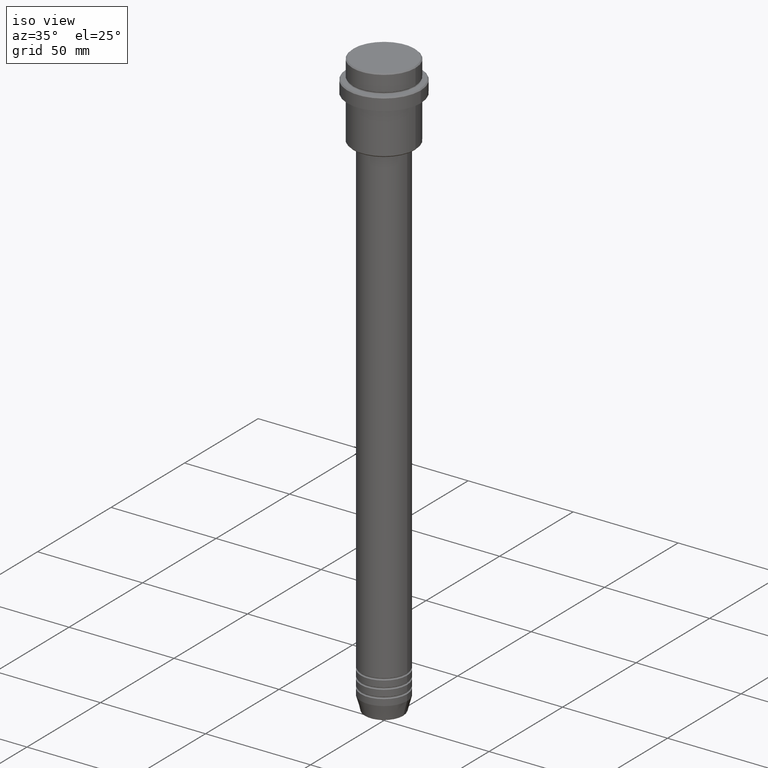
[diagram: clean part render]
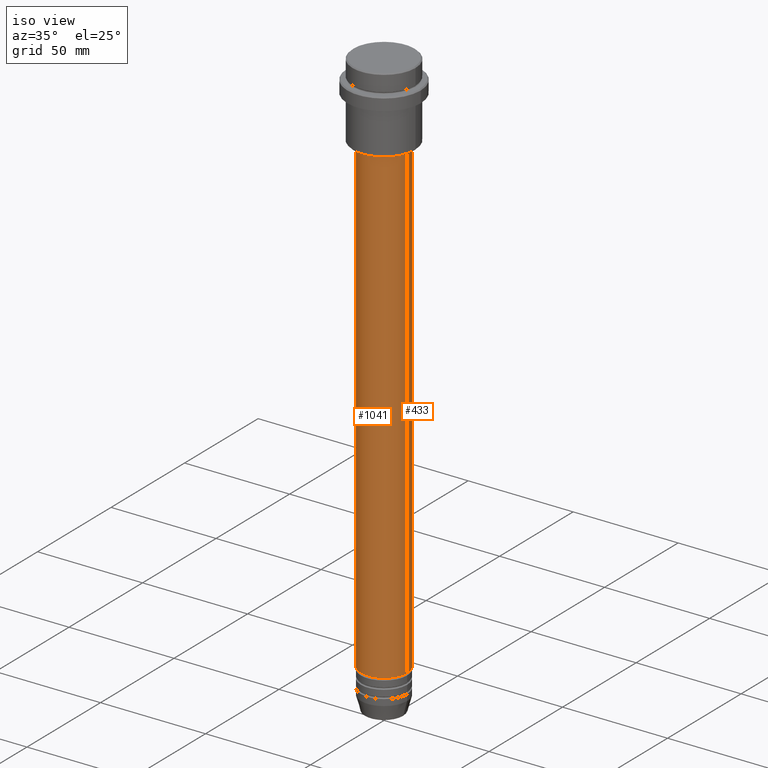
[diagram: same view with one multi-face feature highlighted, each face labeled with its STEP entity id]
A machine part, iso view. The highlighted faces form ONE feature: a constant-radius fillet chain: 2 tangent blend faces with common blend radius 11 mm. The faces share edges in the B-rep.
Their STEP definitions:
[1] entity #1041 (Cylinder):
#2 = EDGE_CURVE ( 'NONE', #743, #348, #1378, .T. ) ;
#5 = DIRECTION ( 'NONE',  ( 1.000000000000000000, 0.000000000000000000, 0.000000000000000000 ) ) ;
#27 = EDGE_LOOP ( 'NONE', ( #1201, #857, #887, #1208 ) ) ;
#97 = VECTOR ( 'NONE', #435, 1000.000000000000000 ) ;
#115 = EDGE_CURVE ( 'NONE', #348, #996, #357, .T. ) ;
#174 = DIRECTION ( 'NONE',  ( -0.000000000000000000, -0.000000000000000000, 1.000000000000000000 ) ) ;
#188 = LINE ( 'NONE', #1080, #1142 ) ;
#218 = CARTESIAN_POINT ( 'NONE',  ( 0.000000000000000000, 0.000000000000000000, -261.9999999999998863 ) ) ;
#271 = CARTESIAN_POINT ( 'NONE',  ( 0.000000000000000000, 0.000000000000000000, 0.000000000000000000 ) ) ;
#348 = VERTEX_POINT ( 'NONE', #1399 ) ;
#357 = LINE ( 'NONE', #1238, #97 ) ;
#407 = AXIS2_PLACEMENT_3D ( 'NONE', #271, #174, #1035 ) ;
#435 = DIRECTION ( 'NONE',  ( -0.000000000000000000, -0.000000000000000000, 1.000000000000000000 ) ) ;
#442 = EDGE_CURVE ( 'NONE', #1177, #996, #745, .T. ) ;
#567 = DIRECTION ( 'NONE',  ( -0.000000000000000000, -0.000000000000000000, 1.000000000000000000 ) ) ;
#620 = DIRECTION ( 'NONE',  ( -0.000000000000000000, -0.000000000000000000, 1.000000000000000000 ) ) ;
#712 = FACE_OUTER_BOUND ( 'NONE', #27, .T. ) ;
#743 = VERTEX_POINT ( 'NONE', #1392 ) ;
#745 = CIRCLE ( 'NONE', #772, 10.99999999999999822 ) ;
#772 = AXIS2_PLACEMENT_3D ( 'NONE', #877, #1197, #5 ) ;
#792 = EDGE_CURVE ( 'NONE', #743, #1177, #188, .T. ) ;
#857 = ORIENTED_EDGE ( 'NONE', *, *, #2, .T. ) ;
#877 = CARTESIAN_POINT ( 'NONE',  ( 0.000000000000000000, 0.000000000000000000, -37.00000000000008527 ) ) ;
#879 = CARTESIAN_POINT ( 'NONE',  ( -10.99999999999999822, 1.347111479062088207E-15, -37.00000000000008527 ) ) ;
#887 = ORIENTED_EDGE ( 'NONE', *, *, #115, .T. ) ;
#996 = VERTEX_POINT ( 'NONE', #1158 ) ;
#1000 = DIRECTION ( 'NONE',  ( 1.000000000000000000, 0.000000000000000000, 0.000000000000000000 ) ) ;
#1035 = DIRECTION ( 'NONE',  ( 1.000000000000000000, 0.000000000000000000, 0.000000000000000000 ) ) ;
#1041 = ADVANCED_FACE ( 'NONE', ( #712 ), #1163, .T. ) ;
#1080 = CARTESIAN_POINT ( 'NONE',  ( -11.00000000000000000, 1.347111479062088405E-15, 0.000000000000000000 ) ) ;
#1142 = VECTOR ( 'NONE', #620, 1000.000000000000000 ) ;
#1158 = CARTESIAN_POINT ( 'NONE',  ( 10.99999999999999822, 0.000000000000000000, -37.00000000000008527 ) ) ;
#1163 = CYLINDRICAL_SURFACE ( 'NONE', #407, 11.00000000000000000 ) ;
#1177 = VERTEX_POINT ( 'NONE', #879 ) ;
#1197 = DIRECTION ( 'NONE',  ( -0.000000000000000000, -0.000000000000000000, 1.000000000000000000 ) ) ;
#1201 = ORIENTED_EDGE ( 'NONE', *, *, #792, .F. ) ;
#1208 = ORIENTED_EDGE ( 'NONE', *, *, #442, .F. ) ;
#1238 = CARTESIAN_POINT ( 'NONE',  ( 11.00000000000000000, 0.000000000000000000, 0.000000000000000000 ) ) ;
#1338 = AXIS2_PLACEMENT_3D ( 'NONE', #218, #567, #1000 ) ;
#1378 = CIRCLE ( 'NONE', #1338, 11.00000000000000000 ) ;
#1392 = CARTESIAN_POINT ( 'NONE',  ( -11.00000000000000000, 1.347111479062088405E-15, -261.9999999999998863 ) ) ;
#1399 = CARTESIAN_POINT ( 'NONE',  ( 11.00000000000000000, 0.000000000000000000, -261.9999999999998863 ) ) ;
[2] entity #433 (Cylinder):
#97 = VECTOR ( 'NONE', #435, 1000.000000000000000 ) ;
#105 = DIRECTION ( 'NONE',  ( 1.000000000000000000, 0.000000000000000000, 0.000000000000000000 ) ) ;
#115 = EDGE_CURVE ( 'NONE', #348, #996, #357, .T. ) ;
#116 = DIRECTION ( 'NONE',  ( -0.000000000000000000, -0.000000000000000000, 1.000000000000000000 ) ) ;
#188 = LINE ( 'NONE', #1080, #1142 ) ;
#191 = AXIS2_PLACEMENT_3D ( 'NONE', #779, #338, #105 ) ;
#216 = CARTESIAN_POINT ( 'NONE',  ( 0.000000000000000000, 0.000000000000000000, 0.000000000000000000 ) ) ;
#338 = DIRECTION ( 'NONE',  ( -0.000000000000000000, -0.000000000000000000, 1.000000000000000000 ) ) ;
#348 = VERTEX_POINT ( 'NONE', #1399 ) ;
#349 = DIRECTION ( 'NONE',  ( 1.000000000000000000, 0.000000000000000000, 0.000000000000000000 ) ) ;
#356 = AXIS2_PLACEMENT_3D ( 'NONE', #216, #1321, #1331 ) ;
#357 = LINE ( 'NONE', #1238, #97 ) ;
#433 = ADVANCED_FACE ( 'NONE', ( #1120 ), #1097, .T. ) ;
#435 = DIRECTION ( 'NONE',  ( -0.000000000000000000, -0.000000000000000000, 1.000000000000000000 ) ) ;
#448 = EDGE_CURVE ( 'NONE', #348, #743, #890, .T. ) ;
#489 = EDGE_CURVE ( 'NONE', #996, #1177, #1185, .T. ) ;
#620 = DIRECTION ( 'NONE',  ( -0.000000000000000000, -0.000000000000000000, 1.000000000000000000 ) ) ;
#646 = ORIENTED_EDGE ( 'NONE', *, *, #448, .T. ) ;
#672 = CARTESIAN_POINT ( 'NONE',  ( 0.000000000000000000, 0.000000000000000000, -37.00000000000008527 ) ) ;
#743 = VERTEX_POINT ( 'NONE', #1392 ) ;
#765 = EDGE_LOOP ( 'NONE', ( #646, #1199, #783, #843 ) ) ;
#779 = CARTESIAN_POINT ( 'NONE',  ( 0.000000000000000000, 0.000000000000000000, -261.9999999999998863 ) ) ;
#783 = ORIENTED_EDGE ( 'NONE', *, *, #489, .F. ) ;
#792 = EDGE_CURVE ( 'NONE', #743, #1177, #188, .T. ) ;
#843 = ORIENTED_EDGE ( 'NONE', *, *, #115, .F. ) ;
#879 = CARTESIAN_POINT ( 'NONE',  ( -10.99999999999999822, 1.347111479062088207E-15, -37.00000000000008527 ) ) ;
#890 = CIRCLE ( 'NONE', #191, 11.00000000000000000 ) ;
#996 = VERTEX_POINT ( 'NONE', #1158 ) ;
#1080 = CARTESIAN_POINT ( 'NONE',  ( -11.00000000000000000, 1.347111479062088405E-15, 0.000000000000000000 ) ) ;
#1097 = CYLINDRICAL_SURFACE ( 'NONE', #356, 11.00000000000000000 ) ;
#1120 = FACE_OUTER_BOUND ( 'NONE', #765, .T. ) ;
#1142 = VECTOR ( 'NONE', #620, 1000.000000000000000 ) ;
#1158 = CARTESIAN_POINT ( 'NONE',  ( 10.99999999999999822, 0.000000000000000000, -37.00000000000008527 ) ) ;
#1162 = AXIS2_PLACEMENT_3D ( 'NONE', #672, #116, #349 ) ;
#1177 = VERTEX_POINT ( 'NONE', #879 ) ;
#1185 = CIRCLE ( 'NONE', #1162, 10.99999999999999822 ) ;
#1199 = ORIENTED_EDGE ( 'NONE', *, *, #792, .T. ) ;
#1238 = CARTESIAN_POINT ( 'NONE',  ( 11.00000000000000000, 0.000000000000000000, 0.000000000000000000 ) ) ;
#1321 = DIRECTION ( 'NONE',  ( -0.000000000000000000, -0.000000000000000000, 1.000000000000000000 ) ) ;
#1331 = DIRECTION ( 'NONE',  ( 1.000000000000000000, 0.000000000000000000, 0.000000000000000000 ) ) ;
#1392 = CARTESIAN_POINT ( 'NONE',  ( -11.00000000000000000, 1.347111479062088405E-15, -261.9999999999998863 ) ) ;
#1399 = CARTESIAN_POINT ( 'NONE',  ( 11.00000000000000000, 0.000000000000000000, -261.9999999999998863 ) ) ;